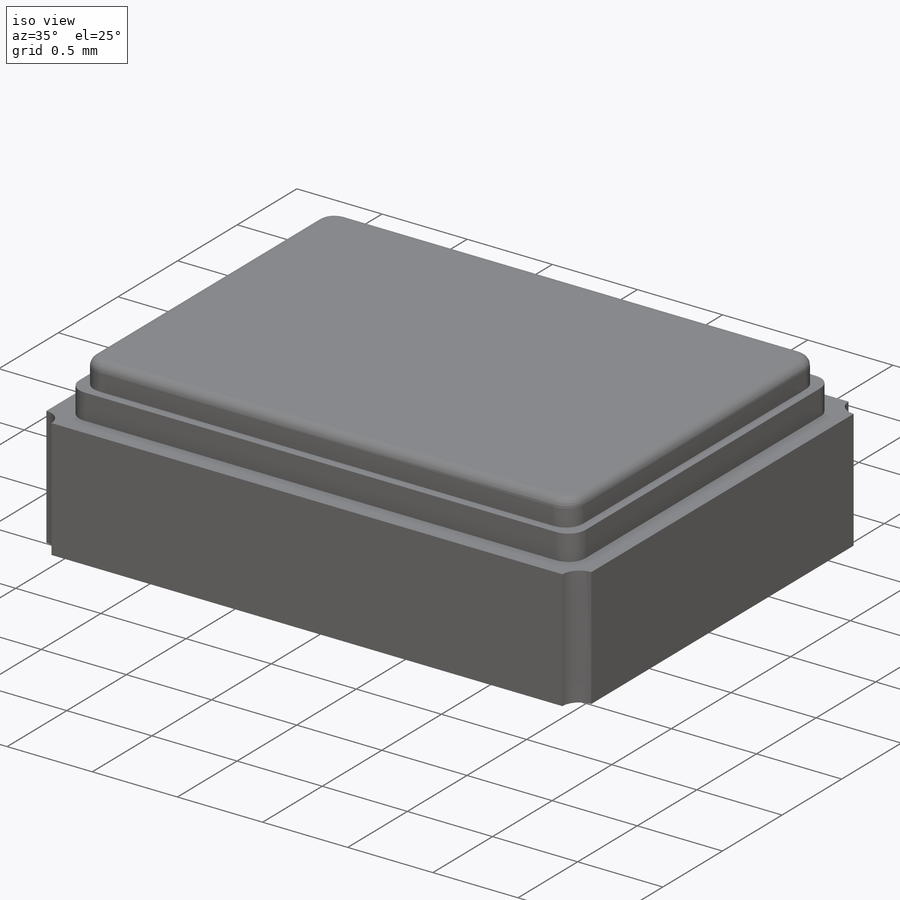
[diagram: iso view]
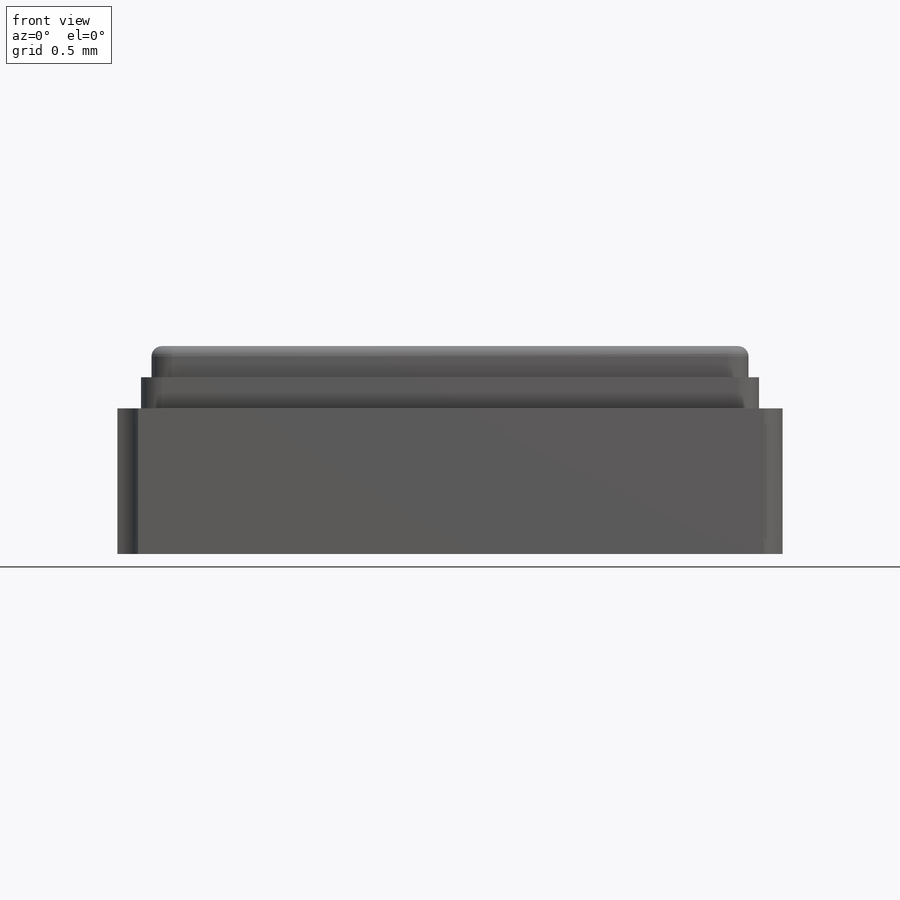
[diagram: front view]
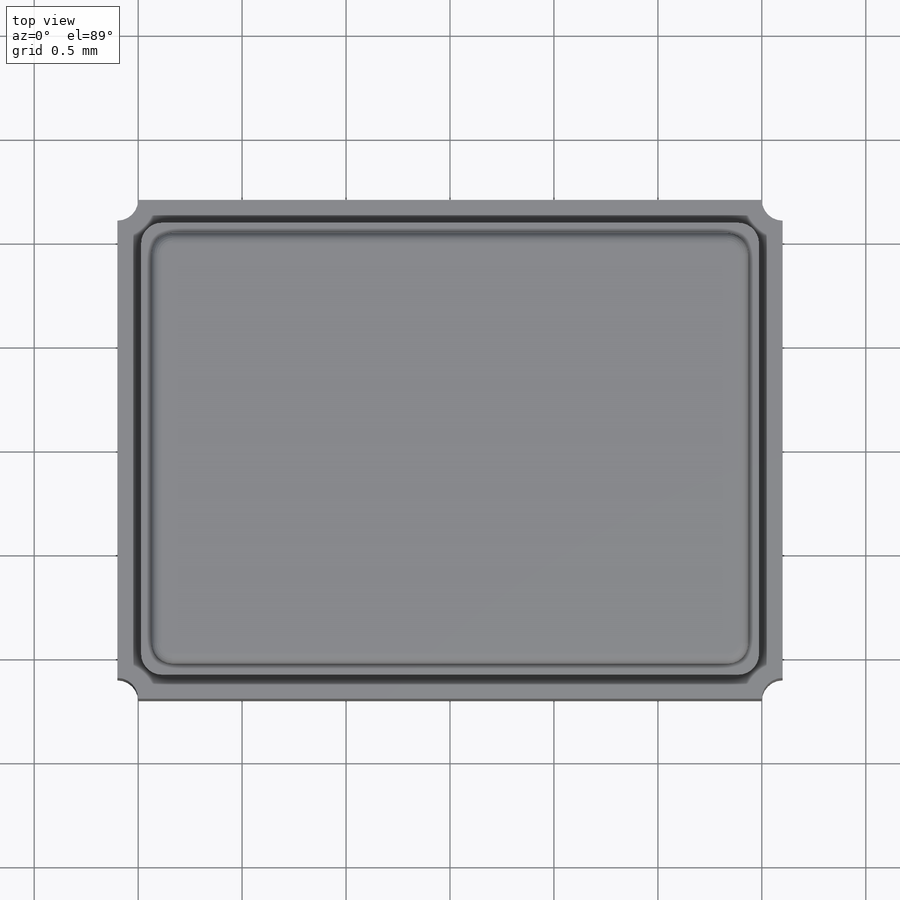
[diagram: top view]
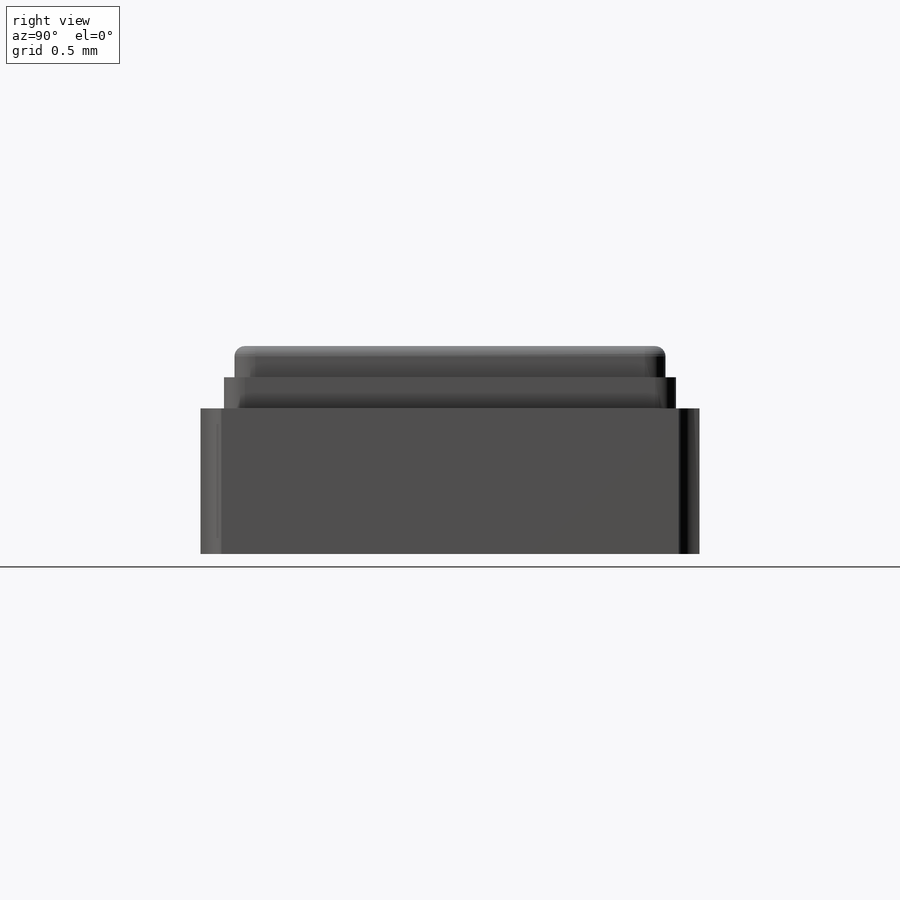
[diagram: right view]
SOLIDWORKS PART (.sldprt)
format: sldprt  version: not decoded by parser v0  size: 230,912 bytes
history: native  units: mm
features: sketch x4, extrude x3, material x1, cut_extrude x1, fillet x1 (+12 scaffold rows collapsed)
feature tree (22):
  scaffold x12  (default folders/planes/origin — collapsed)
  material  "Material <not specified>"
  sketch  "Sketch1"  dims[D1=3.2mm D2=2.4mm]
  extrude  "Boss-Extrude1"  Depth=0.7mm
  sketch  "Sketch2"  dims[D1=~0.086479mm]
  cut_extrude  "Cut-Extrude1"  [1 undecoded]
  sketch  "Sketch3"  dims[D1=0.1mm]
  extrude  "Boss-Extrude2"  Depth=0.15mm
  sketch  "Sketch4"  dims[D2=0.1mm D1=0.05mm]
  extrude  "Boss-Extrude3"  Depth=0.15mm
  fillet  "Fillet1"  Radius=0.05mm
decode coverage: 8 of 9 modeling features carry decoded parameters
note: ~ marks probable driven/reference dimensions
note: 1 parameter value undecoded
note: suppression state not decoded; provenance and decode notes live in map.json
